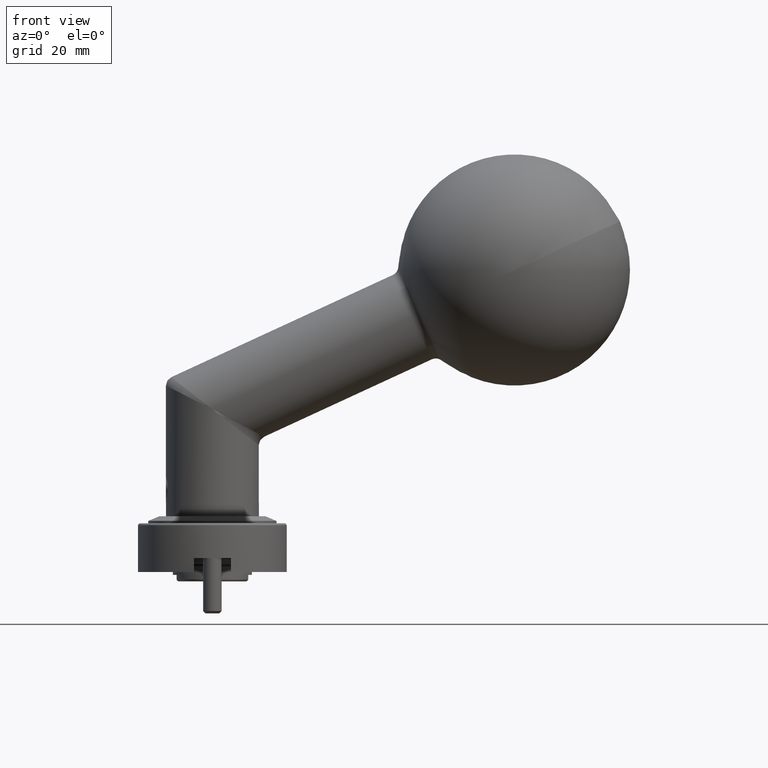
[diagram: clean part render]
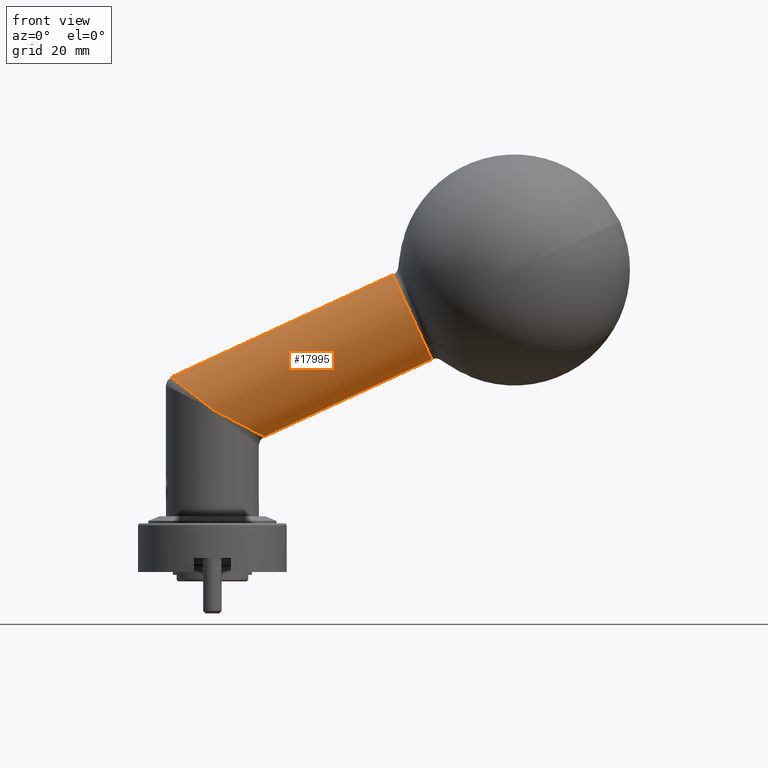
[diagram: same view with one face highlighted and labeled with its STEP entity id]
A machine part, front view. The second image highlights one B-rep face of the part: STEP entity #17995.
In plain terms, the highlighted cylindrical surface (bore or boss wall) has radius 10 mm, axis along (0.908, 0, 0.4191).
Its self-contained STEP definition (entity closure, byte-faithful):
#1412 = AXIS2_PLACEMENT_3D ( 'NONE', #5489, #1979, #12167 ) ;
#1718 = FACE_OUTER_BOUND ( 'NONE', #3283, .T. ) ;
#1741 = CARTESIAN_POINT ( 'NONE',  ( 1.224646799147354400E-015, -9.999999999999998200, 25.00000000000002100 ) ) ;
#1761 = EDGE_CURVE ( 'NONE', #4874, #20450, #6182, .T. ) ;
#1979 = DIRECTION ( 'NONE',  ( -0.9079593845004518800, 0.0000000000000000000, -0.4190581774617466700 ) ) ;
#3283 = EDGE_LOOP ( 'NONE', ( #21518 ) ) ;
#3607 = CARTESIAN_POINT ( 'NONE',  ( 3.673940397442060000E-015, 9.999999999999998200, 25.00000000000002100 ) ) ;
#4874 = VERTEX_POINT ( 'NONE', #16508 ) ;
#5276 = CARTESIAN_POINT ( 'NONE',  ( 1.224646799147354400E-015, -9.999999999999998200, 25.00000000000002100 ) ) ;
#5489 = CARTESIAN_POINT ( 'NONE',  ( 43.03939225151256700, 0.0000000000000000000, 44.86433488531349700 ) ) ;
#5518 = EDGE_LOOP ( 'NONE', ( #10596, #8047 ) ) ;
#5548 = CARTESIAN_POINT ( 'NONE',  ( 3.673940397442060000E-015, 9.999999999999998200, 25.00000000000002100 ) ) ;
#6182 =( BOUNDED_CURVE ( )  B_SPLINE_CURVE ( 3, ( #3607, #15435, #13796, #8754 ),
 .UNSPECIFIED., .F., .F. ) 
 B_SPLINE_CURVE_WITH_KNOTS ( ( 4, 4 ),
 ( 1.570796326794896800, 4.712388980384689700 ),
 .UNSPECIFIED. ) 
 CURVE ( )  GEOMETRIC_REPRESENTATION_ITEM ( )  RATIONAL_B_SPLINE_CURVE ( ( 1.000000000000000000, 0.3333333333333333700, 0.3333333333333333700, 1.000000000000000000 ) ) 
 REPRESENTATION_ITEM ( '' )  );
#6374 = CARTESIAN_POINT ( 'NONE',  ( 3.061616997868383400E-015, 0.0000000000000000000, 25.00000000000002100 ) ) ;
#6404 = CIRCLE ( 'NONE', #1412, 10.00000000000000400 ) ;
#6864 = AXIS2_PLACEMENT_3D ( 'NONE', #6374, #16768, #18174 ) ;
#8047 = ORIENTED_EDGE ( 'NONE', *, *, #1761, .T. ) ;
#8261 = CYLINDRICAL_SURFACE ( 'NONE', #6864, 10.00000000000000200 ) ;
#8754 = CARTESIAN_POINT ( 'NONE',  ( 1.224646799147354400E-015, -9.999999999999998200, 25.00000000000002100 ) ) ;
#10596 = ORIENTED_EDGE ( 'NONE', *, *, #20188, .T. ) ;
#11131 = FACE_OUTER_BOUND ( 'NONE', #5518, .T. ) ;
#11349 =( BOUNDED_CURVE ( )  B_SPLINE_CURVE ( 3, ( #5276, #18899, #15445, #5548 ),
 .UNSPECIFIED., .F., .F. ) 
 B_SPLINE_CURVE_WITH_KNOTS ( ( 4, 4 ),
 ( 4.712388980384689700, 7.853981633974482800 ),
 .UNSPECIFIED. ) 
 CURVE ( )  GEOMETRIC_REPRESENTATION_ITEM ( )  RATIONAL_B_SPLINE_CURVE ( ( 1.000000000000000000, 0.3333333333333333700, 0.3333333333333333700, 1.000000000000000000 ) ) 
 REPRESENTATION_ITEM ( '' )  );
#12167 = DIRECTION ( 'NONE',  ( 0.4190581774617464500, 0.0000000000000000000, -0.9079593845004518800 ) ) ;
#12500 = VERTEX_POINT ( 'NONE', #15727 ) ;
#13796 = CARTESIAN_POINT ( 'NONE',  ( -17.67623270984697800, -9.999999999999996400, 38.86915576972656100 ) ) ;
#15435 = CARTESIAN_POINT ( 'NONE',  ( -17.67623270984697800, 9.999999999999996400, 38.86915576972656100 ) ) ;
#15445 = CARTESIAN_POINT ( 'NONE',  ( 22.32376729015300800, 9.999999999999994700, 13.27586019041472200 ) ) ;
#15727 = CARTESIAN_POINT ( 'NONE',  ( 47.22997402613003000, 0.0000000000000000000, 35.78474104030897300 ) ) ;
#16508 = CARTESIAN_POINT ( 'NONE',  ( 3.673940397442060000E-015, 9.999999999999998200, 25.00000000000002100 ) ) ;
#16768 = DIRECTION ( 'NONE',  ( 0.9079593845004516600, 0.0000000000000000000, 0.4190581774617468400 ) ) ;
#17995 = ADVANCED_FACE ( 'NONE', ( #1718, #11131 ), #8261, .T. ) ;
#18174 = DIRECTION ( 'NONE',  ( 0.4190581774617467800, 0.0000000000000000000, -0.9079593845004517700 ) ) ;
#18899 = CARTESIAN_POINT ( 'NONE',  ( 22.32376729015300400, -10.00000000000000000, 13.27586019041472200 ) ) ;
#19361 = EDGE_CURVE ( 'NONE', #12500, #12500, #6404, .T. ) ;
#20188 = EDGE_CURVE ( 'NONE', #20450, #4874, #11349, .T. ) ;
#20450 = VERTEX_POINT ( 'NONE', #1741 ) ;
#21518 = ORIENTED_EDGE ( 'NONE', *, *, #19361, .T. ) ;